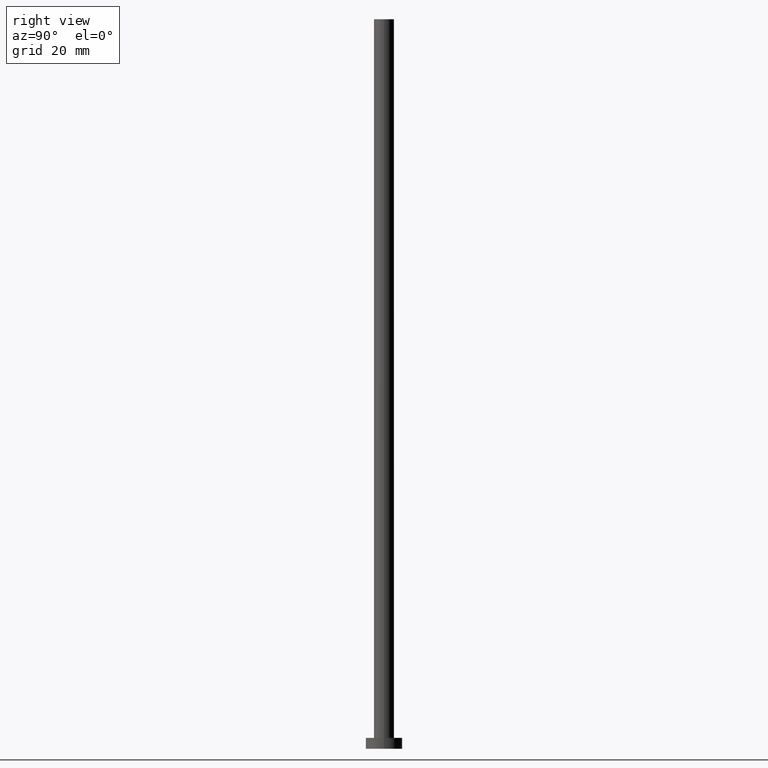
[diagram: clean part render]
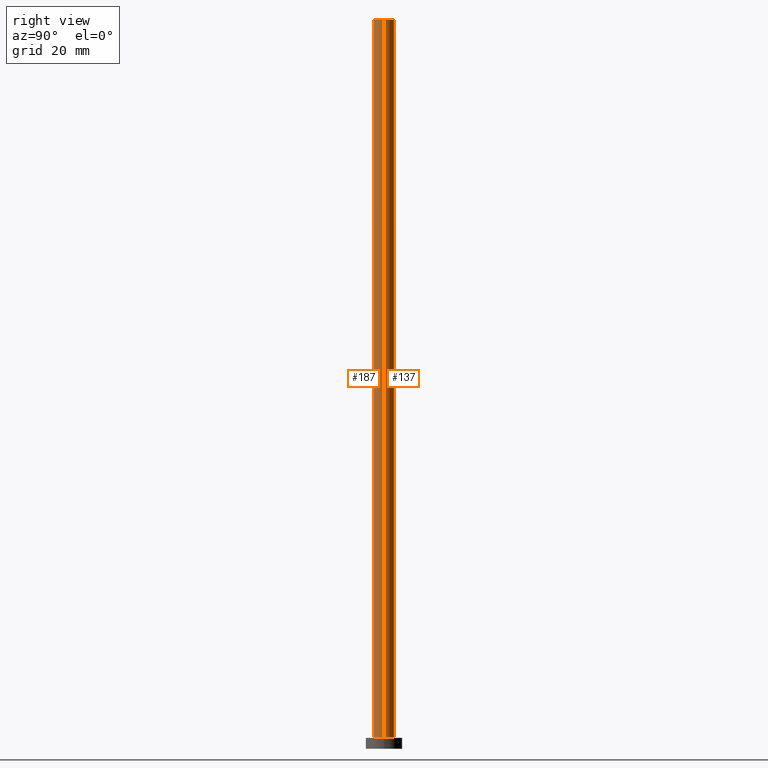
[diagram: same view with one multi-face feature highlighted, each face labeled with its STEP entity id]
A machine part, right view. The highlighted faces form ONE feature: a constant-radius fillet chain: 2 tangent blend faces with common blend radius 2.75 mm. The faces share edges in the B-rep.
Their STEP definitions:
[1] entity #187 (Cylinder):
#16 = ORIENTED_EDGE ( 'NONE', *, *, #127, .F. ) ;
#17 = CARTESIAN_POINT ( 'NONE',  ( 2.750000000000000000, 3.367778697655221012E-16, 200.0000000000000000 ) ) ;
#23 = EDGE_CURVE ( 'NONE', #253, #101, #232, .T. ) ;
#24 = DIRECTION ( 'NONE',  ( 0.000000000000000000, 0.000000000000000000, 1.000000000000000000 ) ) ;
#27 = ORIENTED_EDGE ( 'NONE', *, *, #210, .F. ) ;
#33 = CARTESIAN_POINT ( 'NONE',  ( -2.750000000000000000, 0.000000000000000000, 200.0000000000000000 ) ) ;
#34 = DIRECTION ( 'NONE',  ( -0.000000000000000000, -0.000000000000000000, -1.000000000000000000 ) ) ;
#39 = CARTESIAN_POINT ( 'NONE',  ( 0.000000000000000000, 0.000000000000000000, 3.000000000000000000 ) ) ;
#45 = DIRECTION ( 'NONE',  ( -0.000000000000000000, -0.000000000000000000, -1.000000000000000000 ) ) ;
#55 = FACE_OUTER_BOUND ( 'NONE', #173, .T. ) ;
#58 = DIRECTION ( 'NONE',  ( 1.000000000000000000, 0.000000000000000000, 0.000000000000000000 ) ) ;
#65 = AXIS2_PLACEMENT_3D ( 'NONE', #207, #24, #162 ) ;
#78 = VECTOR ( 'NONE', #34, 1000.000000000000000 ) ;
#90 = LINE ( 'NONE', #17, #78 ) ;
#100 = ORIENTED_EDGE ( 'NONE', *, *, #208, .T. ) ;
#101 = VERTEX_POINT ( 'NONE', #134 ) ;
#106 = VERTEX_POINT ( 'NONE', #193 ) ;
#122 = DIRECTION ( 'NONE',  ( 0.000000000000000000, 0.000000000000000000, 1.000000000000000000 ) ) ;
#127 = EDGE_CURVE ( 'NONE', #106, #222, #90, .T. ) ;
#128 = CYLINDRICAL_SURFACE ( 'NONE', #180, 2.750000000000000000 ) ;
#132 = CIRCLE ( 'NONE', #65, 2.750000000000000000 ) ;
#134 = CARTESIAN_POINT ( 'NONE',  ( -2.750000000000000000, 0.000000000000000000, 3.000000000000000000 ) ) ;
#139 = DIRECTION ( 'NONE',  ( -1.000000000000000000, 0.000000000000000000, 0.000000000000000000 ) ) ;
#162 = DIRECTION ( 'NONE',  ( 1.000000000000000000, 0.000000000000000000, 0.000000000000000000 ) ) ;
#173 = EDGE_LOOP ( 'NONE', ( #16, #27, #239, #100 ) ) ;
#179 = VECTOR ( 'NONE', #45, 1000.000000000000000 ) ;
#180 = AXIS2_PLACEMENT_3D ( 'NONE', #249, #235, #139 ) ;
#187 = ADVANCED_FACE ( 'NONE', ( #55 ), #128, .T. ) ;
#193 = CARTESIAN_POINT ( 'NONE',  ( 2.750000000000000000, 3.367778697655221012E-16, 200.0000000000000000 ) ) ;
#203 = CARTESIAN_POINT ( 'NONE',  ( -2.750000000000000000, 0.000000000000000000, 200.0000000000000000 ) ) ;
#207 = CARTESIAN_POINT ( 'NONE',  ( 0.000000000000000000, 0.000000000000000000, 200.0000000000000000 ) ) ;
#208 = EDGE_CURVE ( 'NONE', #101, #222, #216, .T. ) ;
#210 = EDGE_CURVE ( 'NONE', #253, #106, #132, .T. ) ;
#216 = CIRCLE ( 'NONE', #229, 2.750000000000000000 ) ;
#222 = VERTEX_POINT ( 'NONE', #225 ) ;
#225 = CARTESIAN_POINT ( 'NONE',  ( 2.750000000000000000, 3.367778697655221012E-16, 3.000000000000000000 ) ) ;
#229 = AXIS2_PLACEMENT_3D ( 'NONE', #39, #122, #58 ) ;
#232 = LINE ( 'NONE', #33, #179 ) ;
#235 = DIRECTION ( 'NONE',  ( -0.000000000000000000, -0.000000000000000000, -1.000000000000000000 ) ) ;
#239 = ORIENTED_EDGE ( 'NONE', *, *, #23, .T. ) ;
#249 = CARTESIAN_POINT ( 'NONE',  ( 0.000000000000000000, 0.000000000000000000, 200.0000000000000000 ) ) ;
#253 = VERTEX_POINT ( 'NONE', #203 ) ;
[2] entity #137 (Cylinder):
#12 = EDGE_CURVE ( 'NONE', #106, #253, #105, .T. ) ;
#17 = CARTESIAN_POINT ( 'NONE',  ( 2.750000000000000000, 3.367778697655221012E-16, 200.0000000000000000 ) ) ;
#21 = CARTESIAN_POINT ( 'NONE',  ( 0.000000000000000000, 0.000000000000000000, 3.000000000000000000 ) ) ;
#23 = EDGE_CURVE ( 'NONE', #253, #101, #232, .T. ) ;
#33 = CARTESIAN_POINT ( 'NONE',  ( -2.750000000000000000, 0.000000000000000000, 200.0000000000000000 ) ) ;
#34 = DIRECTION ( 'NONE',  ( -0.000000000000000000, -0.000000000000000000, -1.000000000000000000 ) ) ;
#41 = ORIENTED_EDGE ( 'NONE', *, *, #23, .F. ) ;
#42 = CIRCLE ( 'NONE', #163, 2.750000000000000000 ) ;
#45 = DIRECTION ( 'NONE',  ( -0.000000000000000000, -0.000000000000000000, -1.000000000000000000 ) ) ;
#53 = ORIENTED_EDGE ( 'NONE', *, *, #12, .F. ) ;
#68 = ORIENTED_EDGE ( 'NONE', *, *, #240, .T. ) ;
#72 = EDGE_LOOP ( 'NONE', ( #53, #131, #68, #41 ) ) ;
#78 = VECTOR ( 'NONE', #34, 1000.000000000000000 ) ;
#90 = LINE ( 'NONE', #17, #78 ) ;
#94 = AXIS2_PLACEMENT_3D ( 'NONE', #147, #219, #172 ) ;
#101 = VERTEX_POINT ( 'NONE', #134 ) ;
#105 = CIRCLE ( 'NONE', #94, 2.750000000000000000 ) ;
#106 = VERTEX_POINT ( 'NONE', #193 ) ;
#110 = CARTESIAN_POINT ( 'NONE',  ( 0.000000000000000000, 0.000000000000000000, 200.0000000000000000 ) ) ;
#127 = EDGE_CURVE ( 'NONE', #106, #222, #90, .T. ) ;
#131 = ORIENTED_EDGE ( 'NONE', *, *, #127, .T. ) ;
#134 = CARTESIAN_POINT ( 'NONE',  ( -2.750000000000000000, 0.000000000000000000, 3.000000000000000000 ) ) ;
#136 = DIRECTION ( 'NONE',  ( 1.000000000000000000, 0.000000000000000000, 0.000000000000000000 ) ) ;
#137 = ADVANCED_FACE ( 'NONE', ( #175 ), #155, .T. ) ;
#142 = DIRECTION ( 'NONE',  ( 0.000000000000000000, 0.000000000000000000, 1.000000000000000000 ) ) ;
#147 = CARTESIAN_POINT ( 'NONE',  ( 0.000000000000000000, 0.000000000000000000, 200.0000000000000000 ) ) ;
#155 = CYLINDRICAL_SURFACE ( 'NONE', #214, 2.750000000000000000 ) ;
#163 = AXIS2_PLACEMENT_3D ( 'NONE', #21, #142, #136 ) ;
#172 = DIRECTION ( 'NONE',  ( 1.000000000000000000, 0.000000000000000000, 0.000000000000000000 ) ) ;
#175 = FACE_OUTER_BOUND ( 'NONE', #72, .T. ) ;
#179 = VECTOR ( 'NONE', #45, 1000.000000000000000 ) ;
#193 = CARTESIAN_POINT ( 'NONE',  ( 2.750000000000000000, 3.367778697655221012E-16, 200.0000000000000000 ) ) ;
#200 = DIRECTION ( 'NONE',  ( -0.000000000000000000, -0.000000000000000000, -1.000000000000000000 ) ) ;
#203 = CARTESIAN_POINT ( 'NONE',  ( -2.750000000000000000, 0.000000000000000000, 200.0000000000000000 ) ) ;
#214 = AXIS2_PLACEMENT_3D ( 'NONE', #110, #200, #241 ) ;
#219 = DIRECTION ( 'NONE',  ( 0.000000000000000000, 0.000000000000000000, 1.000000000000000000 ) ) ;
#222 = VERTEX_POINT ( 'NONE', #225 ) ;
#225 = CARTESIAN_POINT ( 'NONE',  ( 2.750000000000000000, 3.367778697655221012E-16, 3.000000000000000000 ) ) ;
#232 = LINE ( 'NONE', #33, #179 ) ;
#240 = EDGE_CURVE ( 'NONE', #222, #101, #42, .T. ) ;
#241 = DIRECTION ( 'NONE',  ( -1.000000000000000000, 0.000000000000000000, 0.000000000000000000 ) ) ;
#253 = VERTEX_POINT ( 'NONE', #203 ) ;